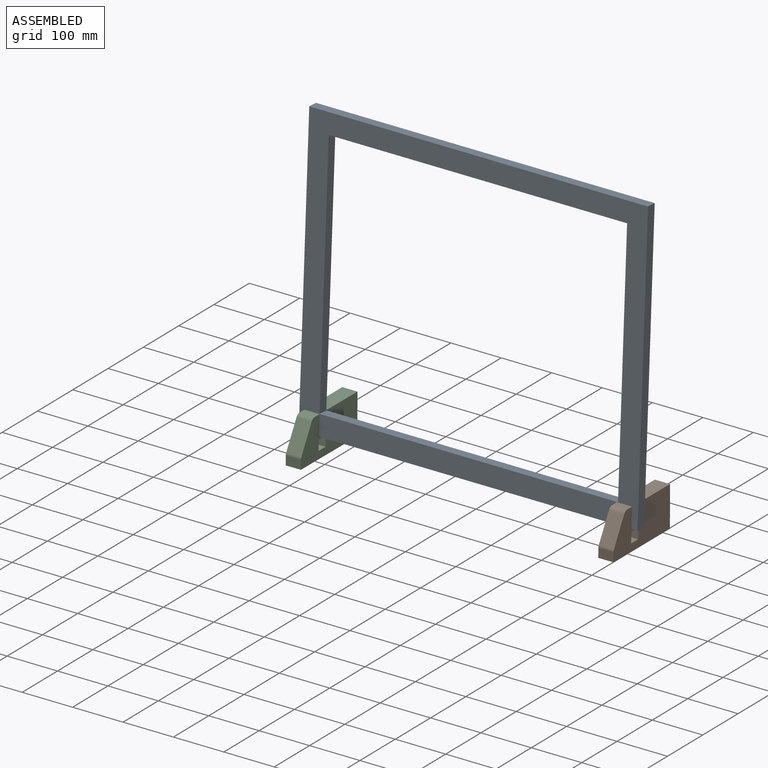
[diagram: assembled view]
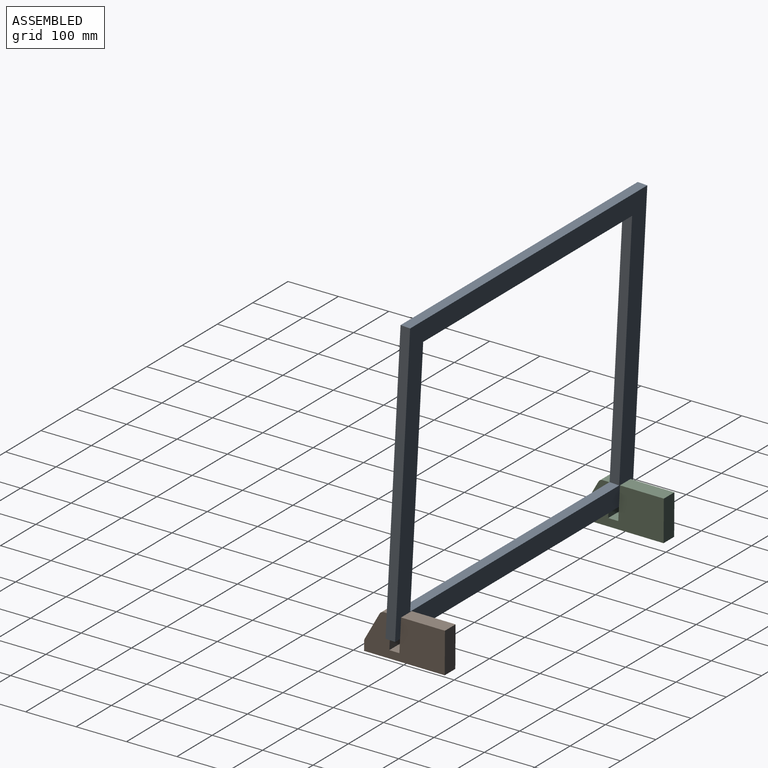
[diagram: assembled view, second angle]
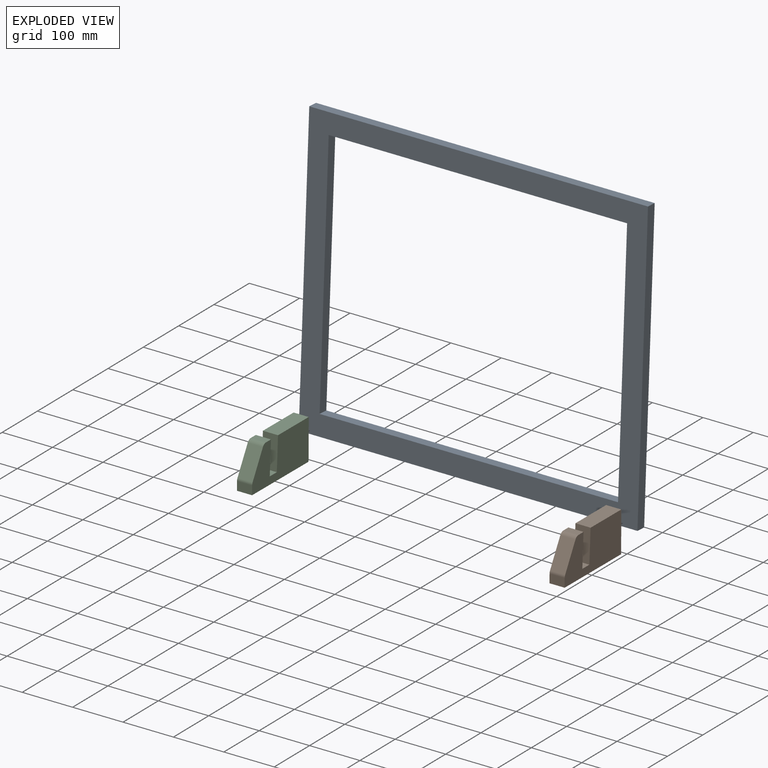
[diagram: exploded view]
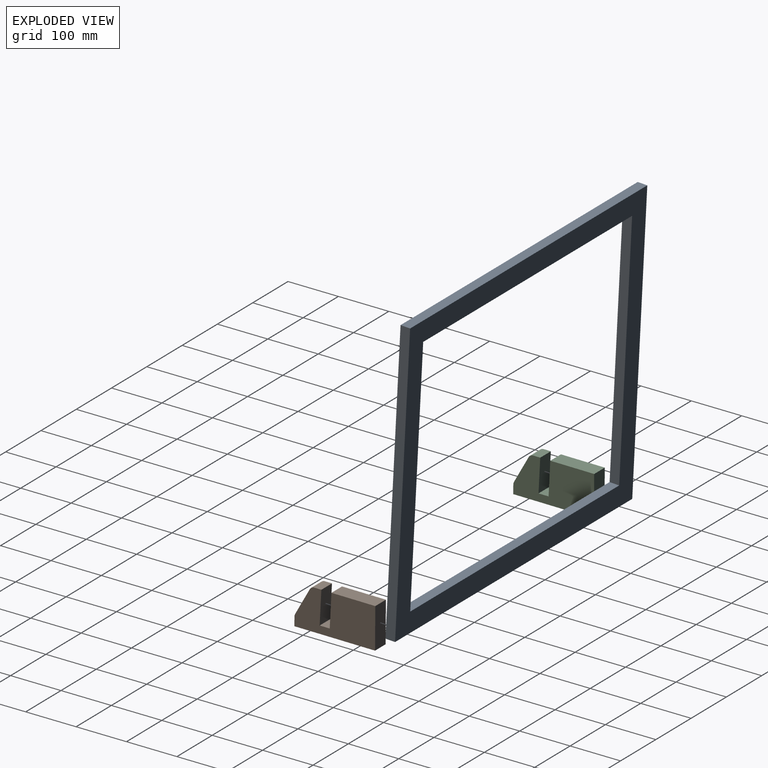
[diagram: exploded view, second angle]
ASSEMBLY  parts=3 mates=4
PART A: 10 faces, bbox 672x19x571 mm
  f0: plane 672x19mm, normal (0,0,-1), area 12768mm2, adj f1,f7,f8,f9
  f1: plane 571x19mm, normal (1,0,0), area 10849mm2, adj f0,f2,f8,f9
  f2: plane 672x19mm, normal (0,0,1), area 12768mm2, adj f1,f7,f8,f9
  f3: plane 491x19mm, normal (1,0,0), area 9329mm2, adj f4,f6,f8,f9
  f4: plane 592x19mm, normal (0,0,-1), area 11248mm2, adj f3,f5,f8,f9
  f5: plane 491x19mm, normal (-1,0,0), area 9329mm2, adj f4,f6,f8,f9
  f6: plane 592x19mm, normal (0,0,1), area 11248mm2, adj f3,f5,f8,f9
  f7: plane 571x19mm, normal (-1,0,0), area 10849mm2, adj f0,f2,f8,f9
  f8: plane 672x571mm, normal (0,-1,0), area 93040mm2, adj f0,f1,f2,f3,f4,f5,f6,f7
  f9: plane 672x571mm, normal (0,1,0), area 93040mm2, adj f0,f1,f2,f3,f4,f5,f6,f7
PART B: 13 faces, bbox 30x160x80 mm
  f0: plane 65x30mm, normal (0,-1,-0.05), area 1952.1mm2, adj f1,f8,f9,f10
  f1: plane 30x20mm, normal (0,0,1), area 600mm2, adj f0,f2,f9,f10
  f2: plane 65x30mm, normal (0,1,0.05), area 1952.1mm2, adj f1,f3,f9,f10
  f3: plane 87x30mm, normal (0,0,1), area 2610mm2, adj f2,f4,f9,f10
  f4: plane 80x30mm, normal (0,-1,0), area 2400mm2, adj f3,f5,f9,f10
  f5: plane 160x30mm, normal (0,0,-1), area 4800mm2, adj f4,f6,f9,f10
  f6: plane 30x17.43mm, normal (0,1,0), area 522.9mm2, adj f5,f9,f10,f11
  f7: plane 52.57x30mm, normal (0,0.88,0.48), area 1799.8mm2, adj f9,f10,f11,f12
  f8: plane 30x14.09mm, normal (0,0,1), area 422.6mm2, adj f0,f9,f10,f12
  f9: plane 160x80mm, normal (1,0,0), area 10503.7mm2, adj f0,f1,f2,f3,f4,f5,f6,f7
  f10: plane 160x80mm, normal (-1,0,0), area 10503.7mm2, adj f0,f1,f2,f3,f4,f5,f6,f7
  f11: cylinder r=10mm len=30mm, axis (1,0,0), area 150.9mm2, adj f6,f7,f9,f10
  f12: cylinder r=10mm len=30mm, axis (-1,0,0), area 320.4mm2, adj f7,f8,f9,f10
PART C: same geometry as B
PLACE A rot(axis=(-1,0,0),3deg) t=(-201.3,6.34,-82.68)mm
PLACE B rot(axis=(0,0,1),180deg) t=(418.7,-65.56,-146.74)mm
PLACE C rot(axis=(0,0,1),180deg) t=(-201.4,-65.56,-146.74)mm
MATE parallel B.f2 <-> A.f9  axis (0,-1,0.05) through (403.7,6.14,-114.68)mm
MATE parallel A.f9 <-> B.f2  axis (0,1,-0.05) through (390.7,6.34,-82.68)mm
MATE parallel A.f9 <-> B.f2  axis (0,1,-0.05) through (390.7,6.34,-82.68)mm
MATE parallel C.f2 <-> A.f9  axis (0,-1,0.05) through (-216.4,6.14,-114.68)mm
